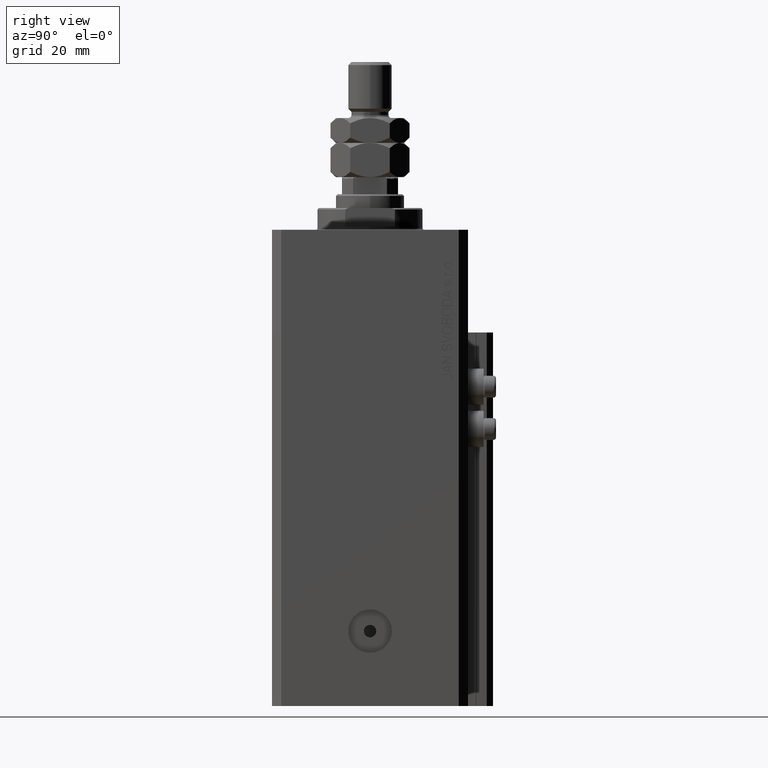
[diagram: clean part render]
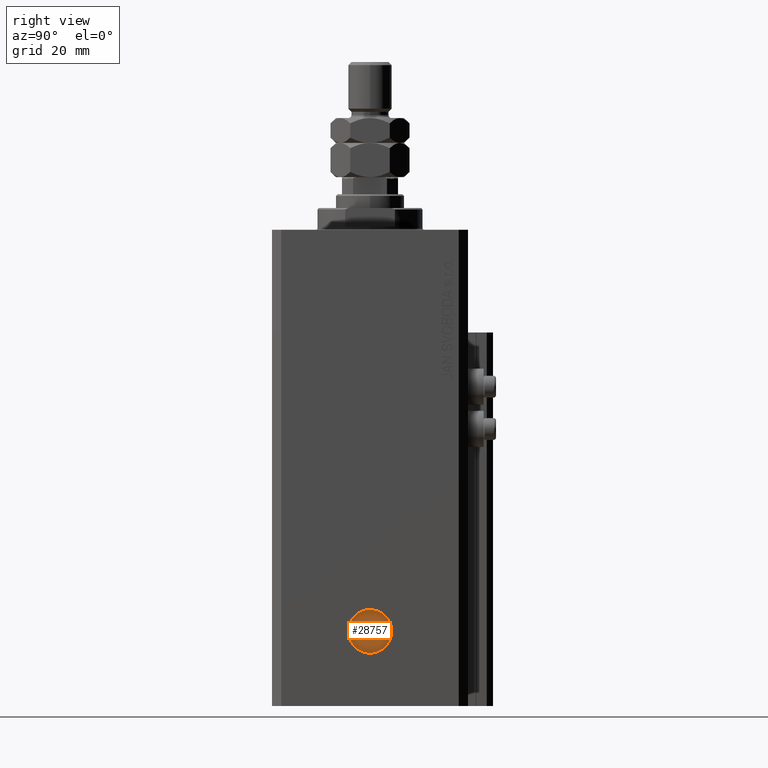
[diagram: same view with one face highlighted and labeled with its STEP entity id]
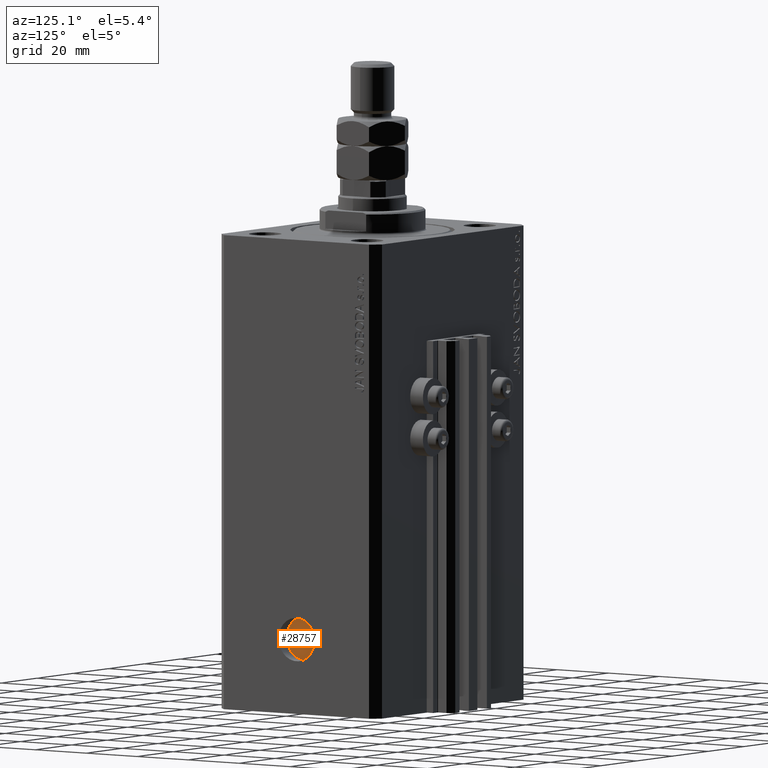
[diagram: same view with one face highlighted and labeled with its STEP entity id]
A machine part, right view. The second image highlights one B-rep face of the part: STEP entity #28757.
A second angle (auxiliary view) of the same face is appended — the face is thin or edge-on in the first view.
In plain terms, the highlighted planar face has unit normal (1, -0, 0).
Its self-contained STEP definition (entity closure, byte-faithful):
#207 = AXIS2_PLACEMENT_3D ( 'NONE', #24739, #28949, #25229 ) ;
#599 = ORIENTED_EDGE ( 'NONE', *, *, #43881, .T. ) ;
#931 = CIRCLE ( 'NONE', #8819, 7.000000000000014211 ) ;
#1856 = AXIS2_PLACEMENT_3D ( 'NONE', #19280, #7933, #30676 ) ;
#5654 = EDGE_CURVE ( 'NONE', #18770, #46449, #19993, .T. ) ;
#5907 = CARTESIAN_POINT ( 'NONE',  ( 38.00000000000017764, -6.999999999999914735, -129.0000000000000000 ) ) ;
#7312 = PLANE ( 'NONE',  #35630 ) ;
#7647 = CARTESIAN_POINT ( 'NONE',  ( 38.00000000000027001, 9.869897671684396916E-14, -129.0000000000000000 ) ) ;
#7933 = DIRECTION ( 'NONE',  ( 1.000000000000000000, -1.334402673828349134E-14, 0.000000000000000000 ) ) ;
#8819 = AXIS2_PLACEMENT_3D ( 'NONE', #43306, #20310, #28447 ) ;
#13971 = FACE_BOUND ( 'NONE', #31584, .T. ) ;
#18741 = DIRECTION ( 'NONE',  ( 1.288651725011339866E-14, 1.000000000000000000, 0.000000000000000000 ) ) ;
#18770 = VERTEX_POINT ( 'NONE', #45699 ) ;
#18984 = ORIENTED_EDGE ( 'NONE', *, *, #38653, .T. ) ;
#19280 = CARTESIAN_POINT ( 'NONE',  ( 38.00000000000027001, 9.869897671684393130E-14, -129.0000000000000000 ) ) ;
#19742 = CARTESIAN_POINT ( 'NONE',  ( 38.00000000000029843, 2.000000000000095035, -129.0000000000000000 ) ) ;
#19993 = CIRCLE ( 'NONE', #1856, 1.999999999999996225 ) ;
#20310 = DIRECTION ( 'NONE',  ( 1.000000000000000000, -1.334402673828349134E-14, 0.000000000000000000 ) ) ;
#22379 = DIRECTION ( 'NONE',  ( 1.334402673828349134E-14, 1.000000000000000000, 0.000000000000000000 ) ) ;
#23209 = CIRCLE ( 'NONE', #25535, 7.000000000000014211 ) ;
#24739 = CARTESIAN_POINT ( 'NONE',  ( 38.00000000000027001, 9.869897671684393130E-14, -129.0000000000000000 ) ) ;
#25229 = DIRECTION ( 'NONE',  ( 1.387778780781448358E-14, 1.000000000000000000, 0.000000000000000000 ) ) ;
#25535 = AXIS2_PLACEMENT_3D ( 'NONE', #7647, #26664, #18741 ) ;
#26664 = DIRECTION ( 'NONE',  ( 1.000000000000000000, -1.334402673828349134E-14, 0.000000000000000000 ) ) ;
#28447 = DIRECTION ( 'NONE',  ( 1.288651725011339866E-14, 1.000000000000000000, 0.000000000000000000 ) ) ;
#28757 = ADVANCED_FACE ( 'NONE', ( #13971, #44153 ), #7312, .T. ) ;
#28949 = DIRECTION ( 'NONE',  ( 1.000000000000000000, -1.334402673828349134E-14, 0.000000000000000000 ) ) ;
#30676 = DIRECTION ( 'NONE',  ( 1.387778780781448358E-14, 1.000000000000000000, 0.000000000000000000 ) ) ;
#31584 = EDGE_LOOP ( 'NONE', ( #32904, #40980 ) ) ;
#32277 = CARTESIAN_POINT ( 'NONE',  ( 38.00000000000036238, 7.000000000000112799, -129.0000000000000000 ) ) ;
#32904 = ORIENTED_EDGE ( 'NONE', *, *, #40970, .F. ) ;
#35420 = VERTEX_POINT ( 'NONE', #32277 ) ;
#35630 = AXIS2_PLACEMENT_3D ( 'NONE', #47869, #37455, #22379 ) ;
#37455 = DIRECTION ( 'NONE',  ( 1.000000000000000000, -1.334402673828349134E-14, 0.000000000000000000 ) ) ;
#38653 = EDGE_CURVE ( 'NONE', #40315, #35420, #931, .T. ) ;
#40315 = VERTEX_POINT ( 'NONE', #5907 ) ;
#40970 = EDGE_CURVE ( 'NONE', #46449, #18770, #42046, .T. ) ;
#40980 = ORIENTED_EDGE ( 'NONE', *, *, #5654, .F. ) ;
#42046 = CIRCLE ( 'NONE', #207, 1.999999999999996225 ) ;
#43306 = CARTESIAN_POINT ( 'NONE',  ( 38.00000000000027001, 9.869897671684396916E-14, -129.0000000000000000 ) ) ;
#43881 = EDGE_CURVE ( 'NONE', #35420, #40315, #23209, .T. ) ;
#44153 = FACE_OUTER_BOUND ( 'NONE', #48031, .T. ) ;
#45699 = CARTESIAN_POINT ( 'NONE',  ( 38.00000000000024158, -1.999999999999897193, -129.0000000000000000 ) ) ;
#46449 = VERTEX_POINT ( 'NONE', #19742 ) ;
#47869 = CARTESIAN_POINT ( 'NONE',  ( 38.00000000000027001, 9.869897671684396916E-14, -129.0000000000000000 ) ) ;
#48031 = EDGE_LOOP ( 'NONE', ( #599, #18984 ) ) ;